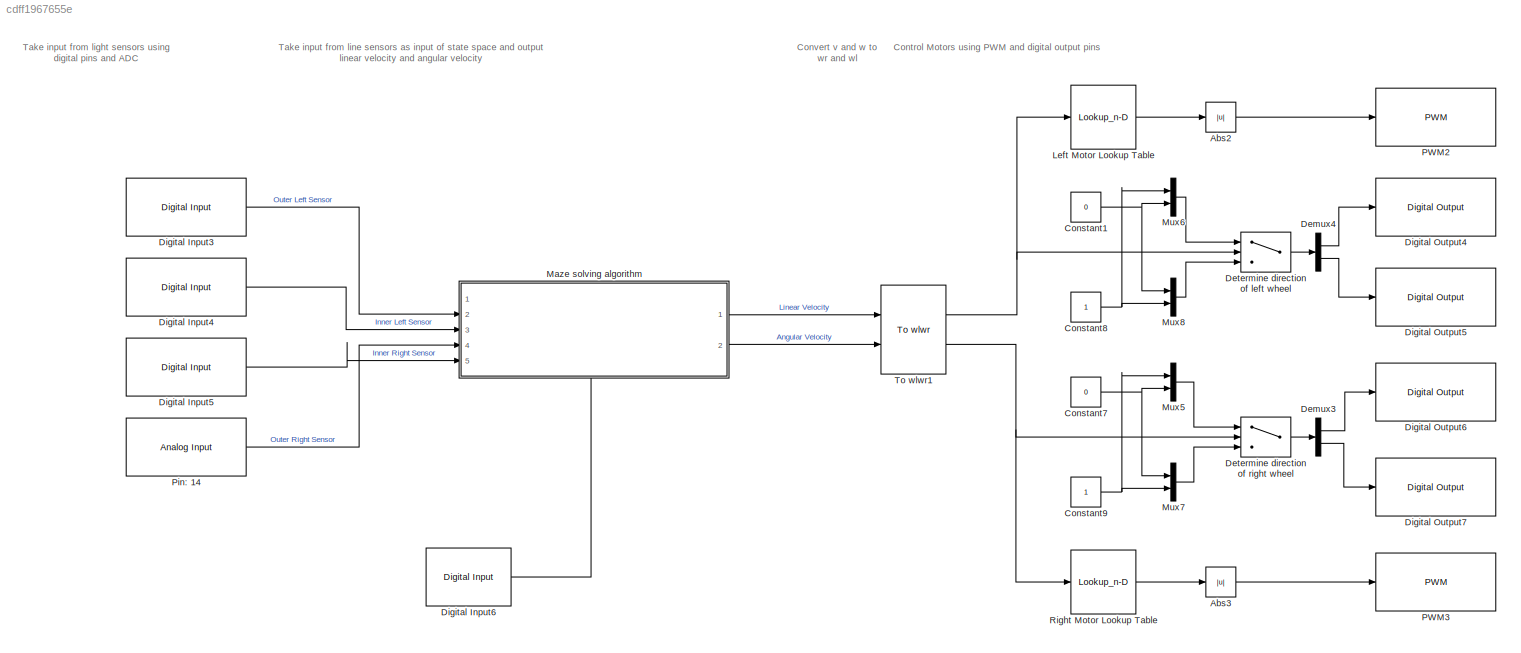
MODEL slx_cdff1967655e
KIND model
CONFIG AbsTol = auto
CONFIG EnableMultiTasking = off
CONFIG FixedStep = auto
CONFIG MaxStep = auto
CONFIG MinStep = auto
CONFIG RelTol = 1e-3
CONFIG SampleTimeConstraint = Unconstrained
CONFIG SolverName = FixedStepAuto
CONFIG StartTime = 0.0
CONFIG StopTime = 5000
BLOCK [Abs] Abs2
  SaturateOnIntegerOverflow = off
BLOCK [Abs] Abs3
  SaturateOnIntegerOverflow = off
BLOCK [Constant] Constant1
  Value = 0
BLOCK [Constant] Constant7
  Value = 0
BLOCK [Constant] Constant8
BLOCK [Constant] Constant9
BLOCK [Demux] Demux3
  Outputs = 2
  Ports = [1, 2]
BLOCK [Demux] Demux4
  Outputs = 2
  Ports = [1, 2]
BLOCK [Switch] Determine direction of left wheel
  Criteria = u2 > Threshold
  InputSameDT = off
  SaturateOnIntegerOverflow = off
BLOCK [Switch] Determine direction of right wheel
  Criteria = u2 > Threshold
  InputSameDT = off
  SaturateOnIntegerOverflow = off
BLOCK [Reference] Digital Input3  REF=arduinolib/Digital Input
  Ports = [0, 1]
  SourceBlock = arduinolib/Digital Input
  SourceProductBaseCode = ARDUINO
  SourceType = Arduino Digital Input
BLOCK [Reference] Digital Input4  REF=arduinolib/Digital Input
  Ports = [0, 1]
  SourceBlock = arduinolib/Digital Input
  SourceProductBaseCode = ARDUINO
  SourceType = Arduino Digital Input
BLOCK [Reference] Digital Input5  REF=arduinolib/Digital Input
  Ports = [0, 1]
  SourceBlock = arduinolib/Digital Input
  SourceProductBaseCode = ARDUINO
  SourceType = Arduino Digital Input
BLOCK [Reference] Digital Input6  REF=arduinolib/Digital Input
  Ports = [0, 1]
  SourceBlock = arduinolib/Digital Input
  SourceProductBaseCode = ARDUINO
  SourceType = Arduino Digital Input
BLOCK [Reference] Digital Output4  REF=arduinolib/Digital Output
  Ports = [1]
  SourceBlock = arduinolib/Digital Output
  SourceProductBaseCode = ARDUINO
  SourceType = Arduino Digital Output
BLOCK [Reference] Digital Output5  REF=arduinolib/Digital Output
  Ports = [1]
  SourceBlock = arduinolib/Digital Output
  SourceProductBaseCode = ARDUINO
  SourceType = Arduino Digital Output
BLOCK [Reference] Digital Output6  REF=arduinolib/Digital Output
  Ports = [1]
  SourceBlock = arduinolib/Digital Output
  SourceProductBaseCode = ARDUINO
  SourceType = Arduino Digital Output
BLOCK [Reference] Digital Output7  REF=arduinolib/Digital Output
  Ports = [1]
  SourceBlock = arduinolib/Digital Output
  SourceProductBaseCode = ARDUINO
  SourceType = Arduino Digital Output
BLOCK [Lookup_n-D] Left Motor Lookup Table
  BreakpointsForDimension1 = WheelSpeed
  InputPortMap = u0
  InternalRulePriority = Speed
  NumberOfTableDimensions = 1
  Ports = [1, 1]
  RndMeth = Simplest
  Table = InputPWM
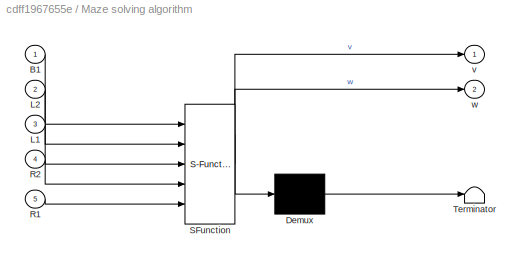
BLOCK [SubSystem] Maze solving algorithm
  ErrorFcn = Stateflow.Translate.translate
  NameLocation = top
  PermitHierarchicalResolution = ExplicitOnly
  PortSchema = {"entries":[{"content":{"sides":[{"content":{"connectorIds":["In2","In3","In5","In4"]},"type":"ConnectorPlacement.EquallySpacedRectSide","uuid":"aba539e4-9d8a-47f4-8547-39721ab9b9f4"},{"content":{"connectorIds":["Out1","Out2"],"side":"RIGHT"},"type":"ConnectorPlacement.EquallySpacedRectSide","uuid":"a712b855-a14f-4e8e-9130-f7ec9592e6f1"},{"content":{"connectorIds":[],"side":"TOP"},"type":"Connecto...<+414ch>
  Ports = [5, 2]
  RequestExecContextInheritance = off
  SFBlockType = Chart
  TreatAsAtomicUnit = on
BLOCK [Demux] Maze solving algorithm/ Demux 
  Outputs = 1
  Ports = [1, 1]
BLOCK [S-Function] Maze solving algorithm/ SFunction 
  EnableBusSupport = on
  FunctionName = sf_sfun
  PortCounts = [5 3]
  Ports = [5, 3]
  SFcnIsStateOwnerBlock = off
  SFunctionDeploymentMode = off
  Tag = Stateflow S-Function 1
BLOCK [Terminator] Maze solving algorithm/ Terminator 
BLOCK [Inport] Maze solving algorithm/B1
BLOCK [Inport] Maze solving algorithm/L1
  Port = 3
BLOCK [Inport] Maze solving algorithm/L2
  Port = 2
BLOCK [Inport] Maze solving algorithm/R1
  Port = 5
BLOCK [Inport] Maze solving algorithm/R2
  Port = 4
BLOCK [Outport] Maze solving algorithm/v
BLOCK [Outport] Maze solving algorithm/w
  Port = 2
BLOCK [Mux] Mux5
  DisplayOption = bar
  Inputs = 2
  Ports = [2, 1]
BLOCK [Mux] Mux6
  DisplayOption = bar
  Inputs = 2
  Ports = [2, 1]
BLOCK [Mux] Mux7
  DisplayOption = bar
  Inputs = 2
  Ports = [2, 1]
BLOCK [Mux] Mux8
  DisplayOption = bar
  Inputs = 2
  Ports = [2, 1]
BLOCK [Reference] PWM2  REF=arduinolib/PWM
  Ports = [1]
  SourceBlock = arduinolib/PWM
  SourceProductBaseCode = ARDUINO
  SourceType = Arduino PWM
BLOCK [Reference] PWM3  REF=arduinolib/PWM
  Ports = [1]
  SourceBlock = arduinolib/PWM
  SourceProductBaseCode = ARDUINO
  SourceType = Arduino PWM
BLOCK [Reference] Pin: 14  REF=arduinolib/Analog Input
  Ports = [0, 1]
  SourceBlock = arduinolib/Analog Input
  SourceProductBaseCode = ARDUINO
  SourceType = Arduino Analog Input
BLOCK [Lookup_n-D] Right Motor Lookup Table 
  BreakpointsForDimension1 = WheelSpeed
  InputPortMap = u0
  InternalRulePriority = Speed
  NumberOfTableDimensions = 1
  Ports = [1, 1]
  RndMeth = Simplest
  Table = InputPWM
BLOCK [Reference] To wlwr1  REF=mobileRoboticsTrainingLib/To wlwr
  Ports = [2, 2]
  SourceBlock = mobileRoboticsTrainingLib/To wlwr
  SourceProductName = Mobile Robotics Training Library
  SourceType = To wlwr
ANNOTATION (root): Control Motors using PWM and digital output pins
ANNOTATION (root): Convert v and w to wr and wl
ANNOTATION (root): Take input from light sensors using digital pins and ADC
ANNOTATION (root): Take input from line sensors as input of state space and output linear velocity and angular velocity
LINE Abs2:1 -> PWM2:1
LINE Abs3:1 -> PWM3:1
NET Constant1:1 -> Mux6:2, Mux8:1
NET Constant7:1 -> Mux5:2, Mux7:1
NET Constant8:1 -> Mux6:1, Mux8:2
NET Constant9:1 -> Mux5:1, Mux7:2
LINE Demux3:1 -> Digital Output6:1
LINE Demux3:2 -> Digital Output7:1
LINE Demux4:1 -> Digital Output4:1
LINE Demux4:2 -> Digital Output5:1
LINE Determine direction of left wheel:1 -> Demux4:1
LINE Determine direction of right wheel:1 -> Demux3:1
LINE Digital Input3:1 -> Maze solving algorithm:2
LINE Digital Input4:1 -> Maze solving algorithm:3
LINE Digital Input5:1 -> Maze solving algorithm:5
LINE Digital Input6:1 -> Maze solving algorithm:1
LINE Left Motor Lookup Table:1 -> Abs2:1
LINE Maze solving algorithm:1 -> To wlwr1:1
LINE Maze solving algorithm:2 -> To wlwr1:2
LINE Mux5:1 -> Determine direction of right wheel:1
LINE Mux6:1 -> Determine direction of left wheel:1
LINE Mux7:1 -> Determine direction of right wheel:3
LINE Mux8:1 -> Determine direction of left wheel:3
LINE Pin: 14:1 -> Maze solving algorithm:4
LINE Right Motor Lookup Table :1 -> Abs3:1
NET To wlwr1:1 -> Determine direction of left wheel:2, Left Motor Lookup Table:1
NET To wlwr1:2 -> Determine direction of right wheel:2, Right Motor Lookup Table :1
note: NET lines group one-source signal fan-out (src -> all destinations, sorted); 1:1 wires keep LINE
CHART Maze solving algorithm states=30 transitions=37
  STATE_LABEL 'Line Following'
  STATE_LABEL 'AdjustRight\nentry:\nv = 0.1;\nw = 1.4;\n'
  STATE_LABEL 'TurnAround\nentry:\nv = 0;\n'
  STATE_LABEL 'Turn\nentry:\nw = 1.2;'
  STATE_LABEL 'Stop1\nentry:\nw = 0;\ndone = 1;'
  STATE_LABEL '[R1 == 0]'
  STATE_LABEL 'AdjustLeft\nentry:\nv = 0.1;\nw = -1.4;\n'
  STATE_LABEL '[after(0.5,sec)]'
  STATE_LABEL '[after(0.5,sec)]'
  STATE_LABEL '[L2&&L1&&R1&&R2]'
  STATE_LABEL 'AdjustRight\nentry:\nv = 0.1;\nw = 1.4;\n'
  STATE_LABEL 'TurnAround\nentry:\nv = 0;\n'
  STATE_LABEL 'Turn\nentry:\nw = 1.2;'
  STATE_LABEL 'Stop1\nentry:\nw = 0;\ndone = 1;'
  STATE_LABEL '[R1 == 0]'
  STATE_LABEL 'Turn\nentry:\nw = 1.2;'
  STATE_LABEL 'Stop1\nentry:\nw = 0;\ndone = 1;'
  STATE_LABEL 'AdjustLeft\nentry:\nv = 0.1;\nw = -1.4;\n'
  STATE_LABEL 'Wait for button then start going forward'
  STATE_LABEL 'Start\nentry:\nv = 0.1;\nw = 0.06;\ndone = 0;'
  STATE_LABEL 'Wait\nentry:\nv = 0;\nw = 0;\n'
  STATE_LABEL '%start'
  STATE_LABEL '[B1 == 1]'
  STATE_LABEL 'Start\nentry:\nv = 0.1;\nw = 0.06;\ndone = 0;'
  STATE_LABEL 'Wait\nentry:\nv = 0;\nw = 0;\n'
  STATE_LABEL 'Go forward at a T \nand find line'
  STATE_LABEL 'DeadReckoning\nentry:\nv = 0.1;\nw = 0.05;\n'
  STATE_LABEL 'DeadReckoning\nentry:\nv = 0.1;\nw = 0.05;\n'
  STATE_LABEL 'Turn Right at cross intersection or right turn'
  STATE_LABEL 'TurnRight\nentry:\ndone = 0;\n'
  STATE_LABEL 'Turn\nentry:\nw = 1.2;'
  STATE_LABEL 'Check\nentry:\nw = 1.2;\ncheck = 1;\nexit:\ncheck = 0;\n'
  STATE_LABEL 'TurnAgain\nentry:\nw = 1.2;'
  STATE_LABEL 'Stop\nentry:\nw = 0;\ndone = 1;'
  STATE_LABEL '[after(0.3,sec)]'
  STATE_LABEL '[after(0.5,sec)]'
  STATE_LABEL '[R1 == 0]'
  STATE_LABEL 'TurnRight\nentry:\ndone = 0;\n'
  STATE_LABEL 'Turn\nentry:\nw = 1.2;'
  STATE_LABEL 'Check\nentry:\nw = 1.2;\ncheck = 1;\nexit:\ncheck = 0;\n'
CHART  states=0 transitions=0
